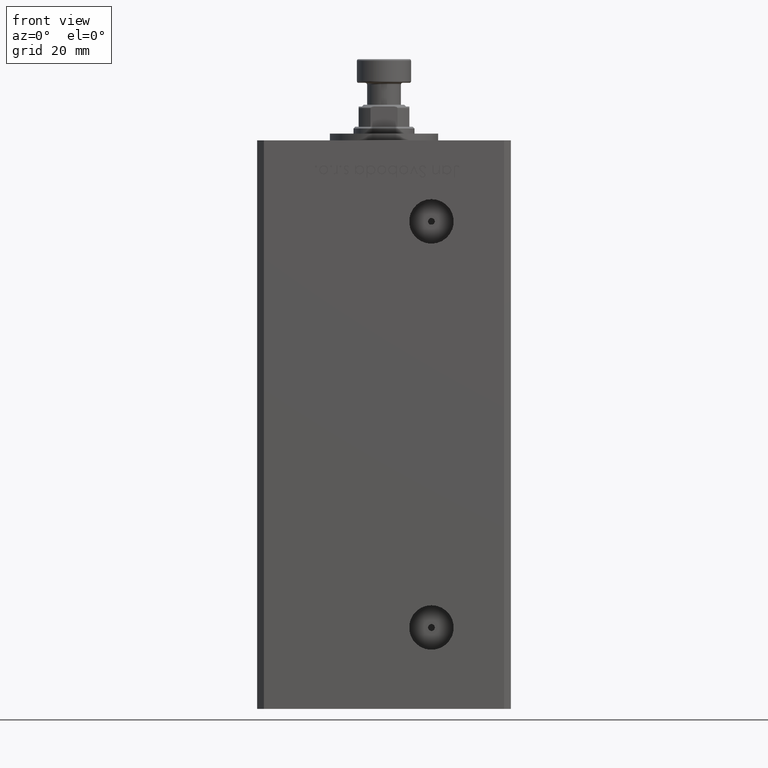
[diagram: clean part render]
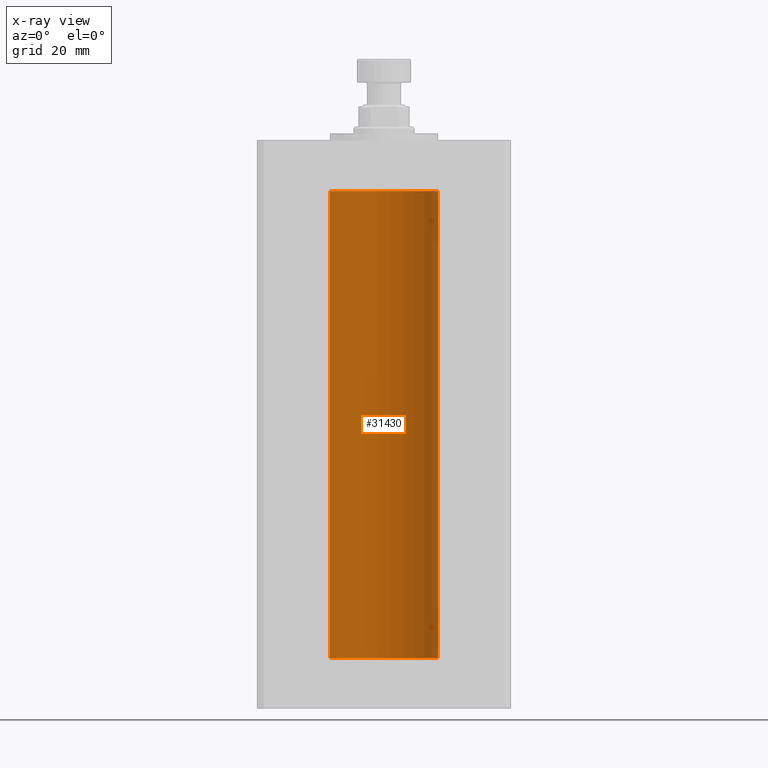
[diagram: x-ray — body ghosted, one internal face saturated and labeled with its STEP entity id]
A machine part, front view, then the same camera in x-ray: the body is ghosted and one INTERNAL B-rep face — a face not visible from any outside direction — is saturated and labeled: STEP entity #31430.
In plain terms, the highlighted cylindrical surface (partial cylindrical patch) has radius 16 mm, axis along (-0, -0, -1).
Its self-contained STEP definition (entity closure, byte-faithful):
#223 = CARTESIAN_POINT ( 'NONE',  ( 0.000000000000000000, 0.000000000000000000, 138.0000000000000000 ) ) ;
#1722 = DIRECTION ( 'NONE',  ( 1.000000000000000000, 0.000000000000000000, 0.000000000000000000 ) ) ;
#3431 = DIRECTION ( 'NONE',  ( -0.000000000000000000, -0.000000000000000000, -1.000000000000000000 ) ) ;
#3634 = CARTESIAN_POINT ( 'NONE',  ( 0.000000000000000000, 0.000000000000000000, 138.0000000000000000 ) ) ;
#4497 = CARTESIAN_POINT ( 'NONE',  ( -16.00000000000000000, 0.000000000000000000, 138.0000000000000000 ) ) ;
#4958 = EDGE_CURVE ( 'NONE', #12084, #39385, #44461, .T. ) ;
#4996 = DIRECTION ( 'NONE',  ( -1.000000000000000000, 0.000000000000000000, 0.000000000000000000 ) ) ;
#7946 = CARTESIAN_POINT ( 'NONE',  ( -16.00000000000000000, 0.000000000000000000, 138.0000000000000000 ) ) ;
#9000 = DIRECTION ( 'NONE',  ( -0.000000000000000000, -0.000000000000000000, -1.000000000000000000 ) ) ;
#10882 = VERTEX_POINT ( 'NONE', #40360 ) ;
#11778 = CIRCLE ( 'NONE', #14335, 16.00000000000000000 ) ;
#12084 = VERTEX_POINT ( 'NONE', #4497 ) ;
#12987 = CYLINDRICAL_SURFACE ( 'NONE', #44901, 16.00000000000000000 ) ;
#14335 = AXIS2_PLACEMENT_3D ( 'NONE', #17962, #30229, #1722 ) ;
#17962 = CARTESIAN_POINT ( 'NONE',  ( 0.000000000000000000, 0.000000000000000000, 0.000000000000000000 ) ) ;
#19704 = ORIENTED_EDGE ( 'NONE', *, *, #47127, .F. ) ;
#21559 = ORIENTED_EDGE ( 'NONE', *, *, #30805, .T. ) ;
#22419 = LINE ( 'NONE', #50417, #37647 ) ;
#23261 = ORIENTED_EDGE ( 'NONE', *, *, #38877, .F. ) ;
#24845 = VECTOR ( 'NONE', #3431, 1000.000000000000000 ) ;
#27813 = ORIENTED_EDGE ( 'NONE', *, *, #4958, .T. ) ;
#28002 = CARTESIAN_POINT ( 'NONE',  ( -16.00000000000000000, 0.000000000000000000, 0.000000000000000000 ) ) ;
#28124 = DIRECTION ( 'NONE',  ( 1.000000000000000000, 0.000000000000000000, 0.000000000000000000 ) ) ;
#29611 = CARTESIAN_POINT ( 'NONE',  ( 16.00000000000000000, 1.959434878635765131E-15, 0.000000000000000000 ) ) ;
#30229 = DIRECTION ( 'NONE',  ( -0.000000000000000000, 0.000000000000000000, 1.000000000000000000 ) ) ;
#30403 = DIRECTION ( 'NONE',  ( -0.000000000000000000, -0.000000000000000000, -1.000000000000000000 ) ) ;
#30805 = EDGE_CURVE ( 'NONE', #10882, #12084, #32932, .T. ) ;
#31430 = ADVANCED_FACE ( 'NONE', ( #52738 ), #12987, .F. ) ;
#32932 = CIRCLE ( 'NONE', #47439, 16.00000000000000000 ) ;
#36824 = EDGE_LOOP ( 'NONE', ( #19704, #21559, #27813, #23261 ) ) ;
#37647 = VECTOR ( 'NONE', #30403, 1000.000000000000000 ) ;
#38877 = EDGE_CURVE ( 'NONE', #49052, #39385, #11778, .T. ) ;
#39385 = VERTEX_POINT ( 'NONE', #28002 ) ;
#40360 = CARTESIAN_POINT ( 'NONE',  ( 16.00000000000000000, 1.959434878635765131E-15, 138.0000000000000000 ) ) ;
#44461 = LINE ( 'NONE', #7946, #24845 ) ;
#44901 = AXIS2_PLACEMENT_3D ( 'NONE', #223, #9000, #4996 ) ;
#47127 = EDGE_CURVE ( 'NONE', #10882, #49052, #22419, .T. ) ;
#47439 = AXIS2_PLACEMENT_3D ( 'NONE', #3634, #52664, #28124 ) ;
#49052 = VERTEX_POINT ( 'NONE', #29611 ) ;
#50417 = CARTESIAN_POINT ( 'NONE',  ( 16.00000000000000000, 1.959434878635765131E-15, 138.0000000000000000 ) ) ;
#52664 = DIRECTION ( 'NONE',  ( -0.000000000000000000, 0.000000000000000000, 1.000000000000000000 ) ) ;
#52738 = FACE_OUTER_BOUND ( 'NONE', #36824, .T. ) ;